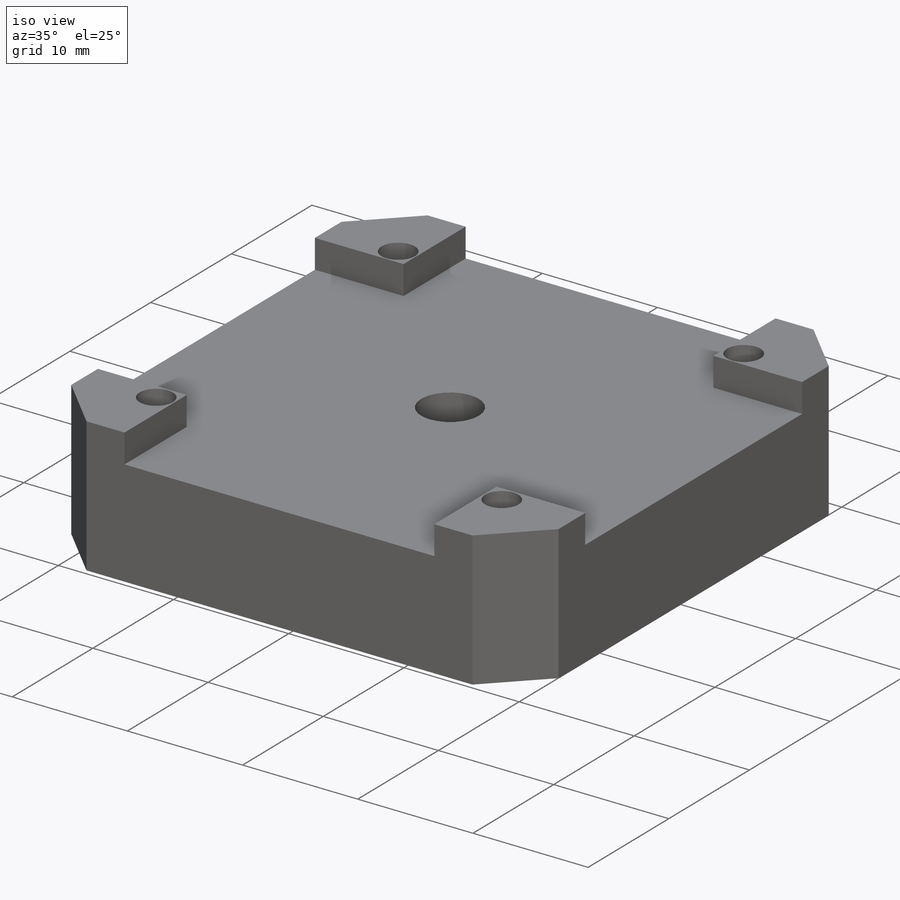
[diagram: iso view]
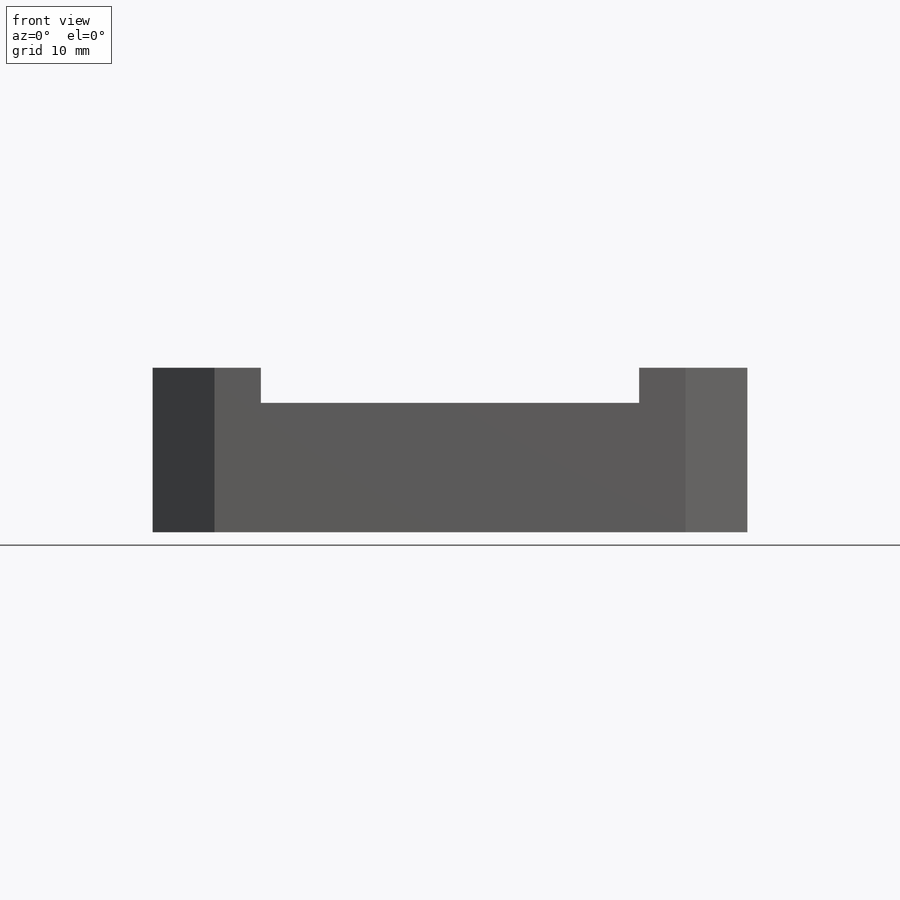
[diagram: front view]
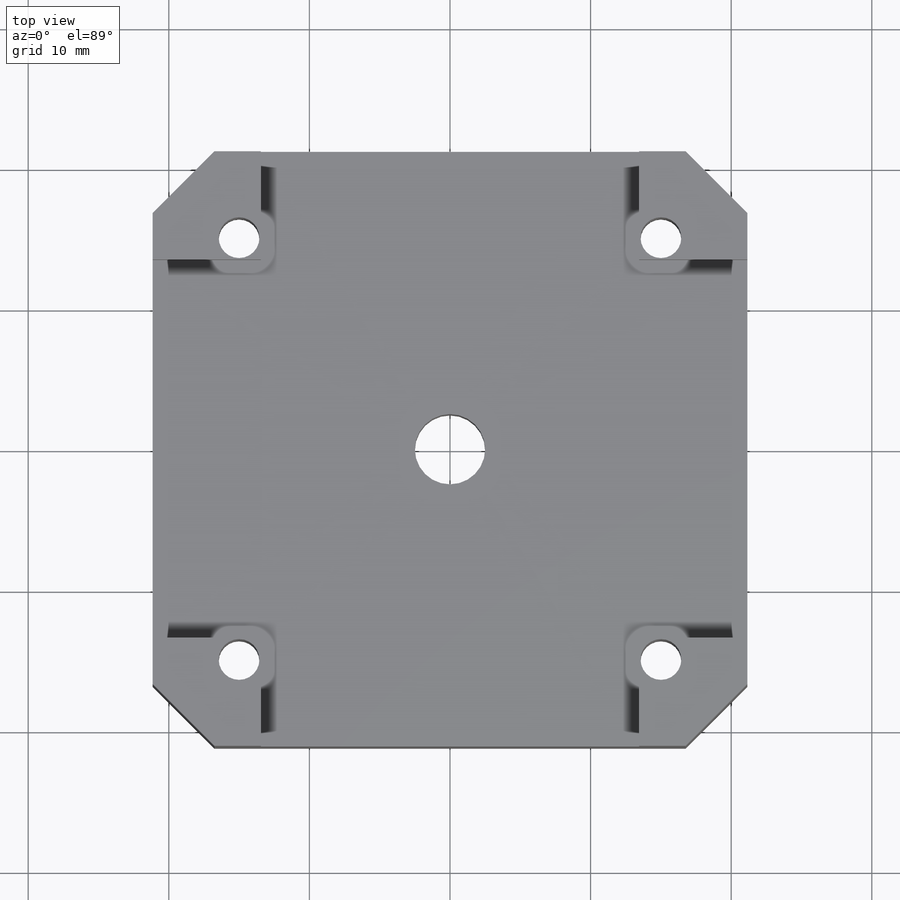
[diagram: top view]
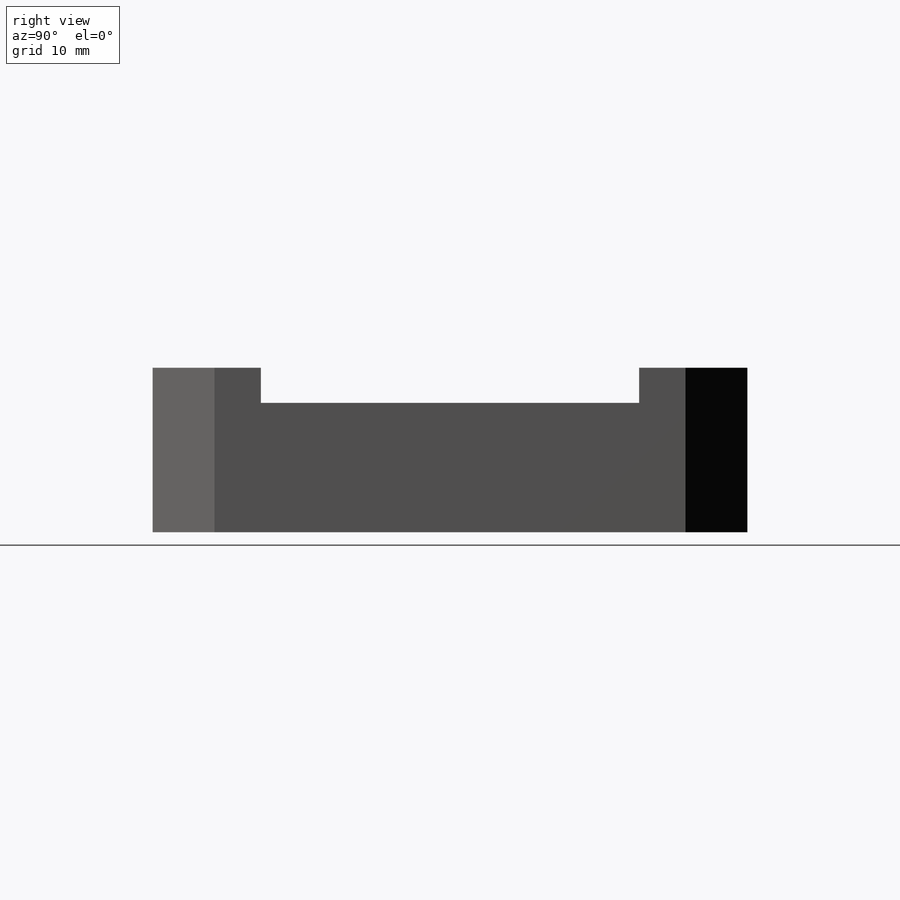
[diagram: right view]
SOLIDWORKS PART (.sldprt)
format: sldprt  version: not decoded by parser v0  size: 261,120 bytes
history: native  units: mm
features: sketch x7, cut_extrude x4, material x1, extrude x1, hole x1 (+13 scaffold rows collapsed)
feature tree (27):
  scaffold x13  (default folders/planes/origin — collapsed)
  material  "Alumina"
  sketch  "Sketch1"  dims[c1.D1=42.3mm c1.D2=42.3mm c1.D3=~4.557112mm c2.D3=45.0deg c2.D4=~4.557112mm c3.D4=45.0deg c3.D5=~9.601182mm c4.D5=45.0deg c4.D6=~9.10398mm c5.D6=45.0deg c5.D7=53.6mm c5.D8=53.6mm c5.D9=~2.270366mm c6.D8=~50.265357mm c6.D3=53.6mm c6.D1=42.3mm c6.D2=42.3mm]
  extrude  "Boss-Extrude1"  Depth=11.7mm
  sketch  "Sketch12"  dims[D1=2.5mm D2=3.3mm D3=3.3mm]
  cut_extrude  "Cut-Extrude6"  [1 undecoded]
  sketch  "Sketch13"  dims[D1=3.3mm D2=3.3mm D3=2.5mm]
  cut_extrude  "Cut-Extrude7"  [1 undecoded]
  sketch  "Sketch14"  dims[D1=6.5mm]
  cut_extrude  "Cut-Extrude8"  Depth=3mm
  sketch  "Sketch15"  dims[D1=5.0mm]
  cut_extrude  "Cut-Extrude9"  [1 undecoded]
  hole  "CBORE for M2.5 Pan Head Machine Screw1"  Diameter=2.9mm Depth=11.7mm
  sketch  "Sketch17"  dims[c1.D1=30.0mm c1.D2=30.0mm c1.D3=30.0mm c1.D4=~30.181213mm c2.D3=30.0mm c2.D4=30.0mm c2.D5=6.15mm c2.D6=6.15mm c2.D7=6.15mm c2.D8=6.15mm]
  sketch  "Sketch16"  dims[hole-wizard template sketch: 45 standard entries collapsed; hole parameters above]
decode coverage: 10 of 13 modeling features carry decoded parameters
note: ~ marks probable driven/reference dimensions
note: 3 parameter values undecoded
summary: no parameter record found for 3 features
note: suppression state not decoded; provenance and decode notes live in map.json
